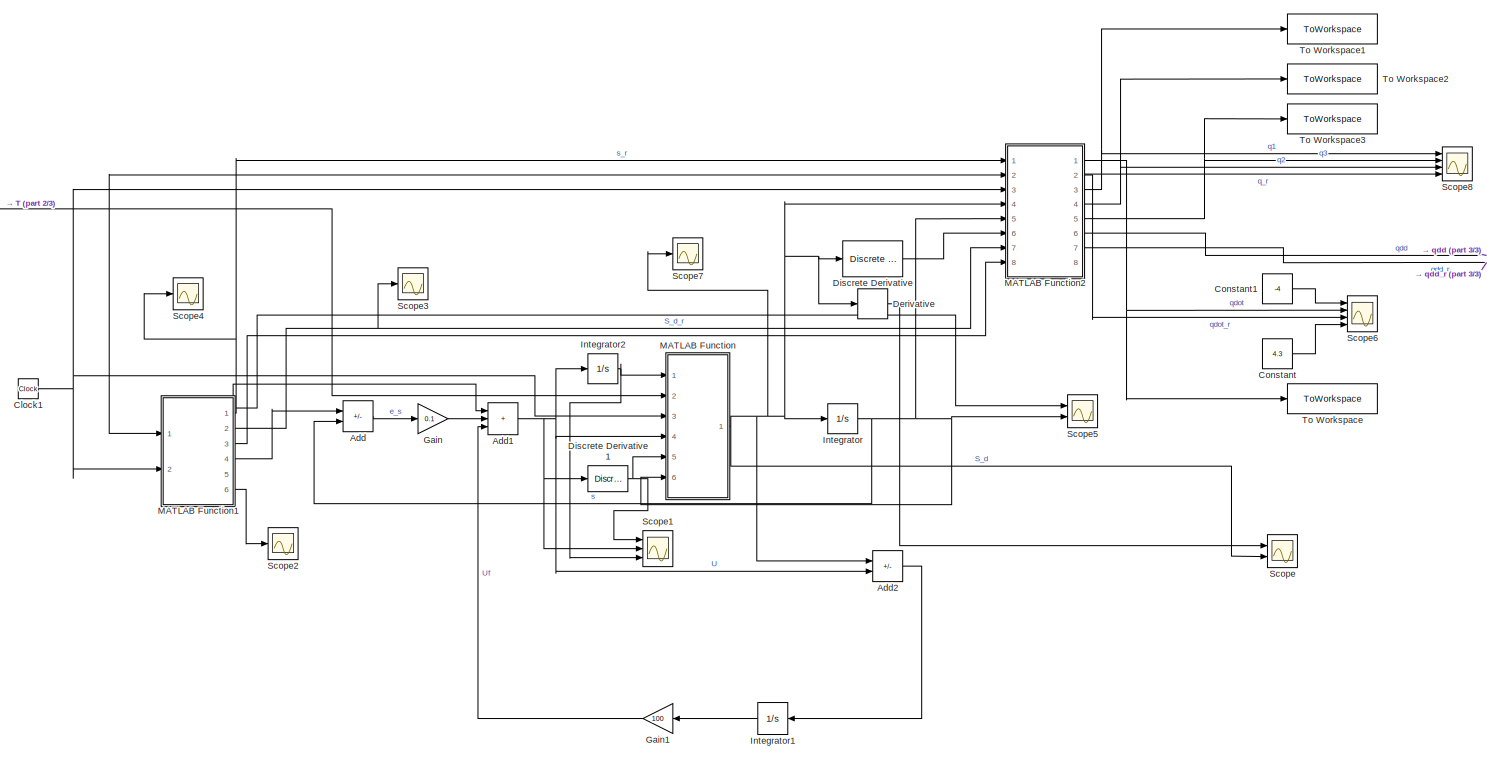
[diagram: root canvas - part 1/3, most of the canvas]
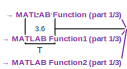
[diagram: root canvas - part 2/3, top left region]
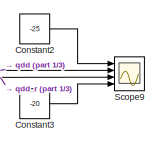
[diagram: root canvas - part 3/3, middle right region]
MODEL slx_b0e207324e34
KIND model
CONFIG AbsTol = auto
CONFIG EnableMultiTasking = off
CONFIG FixedStep = 0.01
CONFIG MaxStep = auto
CONFIG MinStep = auto
CONFIG RelTol = 1e-3
CONFIG SampleTimeConstraint = Unconstrained
CONFIG SolverName = VariableStepAuto
CONFIG StartTime = 0.0
CONFIG StopTime = 3.6
BLOCK [Sum] Add
  IconShape = rectangular
  Inputs = +-
  Ports = [2, 1]
BLOCK [Sum] Add1
  IconShape = rectangular
  Inputs = +++
  Ports = [3, 1]
BLOCK [Sum] Add2
  IconShape = rectangular
  Inputs = +-
  Ports = [2, 1]
BLOCK [Clock] Clock1
BLOCK [Constant] Constant
  Value = 4.3
BLOCK [Constant] Constant1
  Value = -4
BLOCK [Constant] Constant2
  Value = -25
BLOCK [Constant] Constant3
  Value = -20
BLOCK [Derivative] Derivative
BLOCK [Reference] Discrete Derivative  REF=simulink/Discrete/Discrete Derivative
  Ports = [1, 1]
  SourceBlock = simulink/Discrete/Discrete Derivative
  SourceProductBaseCode = SL
  SourceType = Discrete Derivative
BLOCK [Reference] Discrete Derivative1  REF=simulink/Discrete/Discrete Derivative
  Ports = [1, 1]
  SourceBlock = simulink/Discrete/Discrete Derivative
  SourceProductBaseCode = SL
  SourceType = Discrete Derivative
BLOCK [Gain] Gain
  Gain = 0.1
BLOCK [Gain] Gain1
  Gain = 100
BLOCK [Integrator] Integrator
  Ports = [1, 1]
BLOCK [Integrator] Integrator1
  Ports = [1, 1]
BLOCK [Integrator] Integrator2
  Ports = [1, 1]
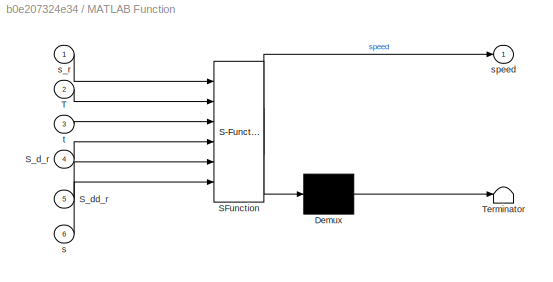
BLOCK [SubSystem] MATLAB Function
  ErrorFcn = Stateflow.Translate.translate
  PermitHierarchicalResolution = ExplicitOnly
  Ports = [6, 1]
  RequestExecContextInheritance = off
  SFBlockType = MATLAB Function
  TreatAsAtomicUnit = on
BLOCK [Demux] MATLAB Function/ Demux 
  Outputs = 1
  Ports = [1, 1]
BLOCK [S-Function] MATLAB Function/ SFunction 
  EnableBusSupport = on
  FunctionName = sf_sfun
  PortCounts = [6 2]
  Ports = [6, 2]
  SFcnIsStateOwnerBlock = off
  SFunctionDeploymentMode = off
  Tag = Stateflow S-Function 2
BLOCK [Terminator] MATLAB Function/ Terminator 
BLOCK [Inport] MATLAB Function/S_d_r
  Port = 4
BLOCK [Inport] MATLAB Function/S_dd_r
  Port = 5
BLOCK [Inport] MATLAB Function/T
  Port = 2
BLOCK [Inport] MATLAB Function/s
  Port = 6
BLOCK [Inport] MATLAB Function/s_r
BLOCK [Outport] MATLAB Function/speed
BLOCK [Inport] MATLAB Function/t
  Port = 3
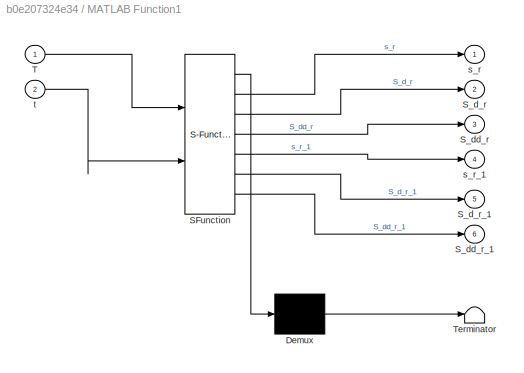
BLOCK [SubSystem] MATLAB Function1
  ErrorFcn = Stateflow.Translate.translate
  PermitHierarchicalResolution = ExplicitOnly
  Ports = [2, 6]
  RequestExecContextInheritance = off
  SFBlockType = MATLAB Function
  TreatAsAtomicUnit = on
BLOCK [Demux] MATLAB Function1/ Demux 
  Outputs = 1
  Ports = [1, 1]
BLOCK [S-Function] MATLAB Function1/ SFunction 
  EnableBusSupport = on
  FunctionName = sf_sfun
  PortCounts = [2 7]
  Ports = [2, 7]
  SFcnIsStateOwnerBlock = off
  SFunctionDeploymentMode = off
  Tag = Stateflow S-Function 3
BLOCK [Terminator] MATLAB Function1/ Terminator 
BLOCK [Outport] MATLAB Function1/S_d_r
  Port = 2
BLOCK [Outport] MATLAB Function1/S_d_r_1
  Port = 5
BLOCK [Outport] MATLAB Function1/S_dd_r
  Port = 3
BLOCK [Outport] MATLAB Function1/S_dd_r_1
  Port = 6
BLOCK [Inport] MATLAB Function1/T
BLOCK [Outport] MATLAB Function1/s_r
BLOCK [Outport] MATLAB Function1/s_r_1
  Port = 4
BLOCK [Inport] MATLAB Function1/t
  Port = 2
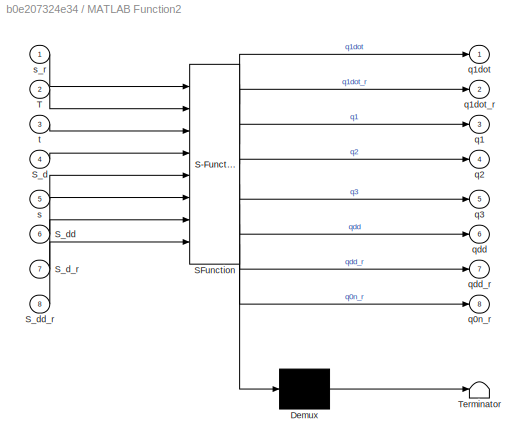
BLOCK [SubSystem] MATLAB Function2
  ErrorFcn = Stateflow.Translate.translate
  PermitHierarchicalResolution = ExplicitOnly
  Ports = [8, 8]
  RequestExecContextInheritance = off
  SFBlockType = MATLAB Function
  TreatAsAtomicUnit = on
BLOCK [Demux] MATLAB Function2/ Demux 
  Outputs = 1
  Ports = [1, 1]
BLOCK [S-Function] MATLAB Function2/ SFunction 
  EnableBusSupport = on
  FunctionName = sf_sfun
  PortCounts = [8 9]
  Ports = [8, 9]
  SFcnIsStateOwnerBlock = off
  SFunctionDeploymentMode = off
  Tag = Stateflow S-Function 4
BLOCK [Terminator] MATLAB Function2/ Terminator 
BLOCK [Inport] MATLAB Function2/S_d
  Port = 4
BLOCK [Inport] MATLAB Function2/S_d_r
  Port = 7
BLOCK [Inport] MATLAB Function2/S_dd
  Port = 6
BLOCK [Inport] MATLAB Function2/S_dd_r
  Port = 8
BLOCK [Inport] MATLAB Function2/T
  Port = 2
BLOCK [Outport] MATLAB Function2/q0n_r
  Port = 8
BLOCK [Outport] MATLAB Function2/q1
  Port = 3
BLOCK [Outport] MATLAB Function2/q1dot
BLOCK [Outport] MATLAB Function2/q1dot_r
  Port = 2
BLOCK [Outport] MATLAB Function2/q2
  Port = 4
BLOCK [Outport] MATLAB Function2/q3
  Port = 5
BLOCK [Outport] MATLAB Function2/qdd
  Port = 6
BLOCK [Outport] MATLAB Function2/qdd_r
  Port = 7
BLOCK [Inport] MATLAB Function2/s
  Port = 5
BLOCK [Inport] MATLAB Function2/s_r
BLOCK [Inport] MATLAB Function2/t
  Port = 3
BLOCK [Scope] Scope
  Floating = off
  NumInputPorts = 2
  Ports = [2]
  ScopeSpecificationString = Simulink.scopes.TimeScopeBlockCfg('CurrentConfiguration', extmgr.ConfigurationSet(extmgr.Configuration('Core','General UI',true),extmgr.Configuration('Core','Source UI',true),extmgr.Configuration('Sources','WiredSimulink',true,'DataLoggingVariableName','ScopeData5'),extmgr.Configuration('Visuals','Time Domain',true,'SerializedDisplays',{struct('MinYLimReal','-10.18085','MaxYLimReal','1.9193','YLab...<+1450ch>
BLOCK [Scope] Scope1
  Floating = off
  NumInputPorts = 3
  Ports = [3]
  ScopeSpecificationString = Simulink.scopes.TimeScopeBlockCfg('CurrentConfiguration', extmgr.ConfigurationSet(extmgr.Configuration('Core','General UI',true),extmgr.Configuration('Core','Source UI',true),extmgr.Configuration('Sources','WiredSimulink',true,'DataLoggingVariableName','ScopeData7'),extmgr.Configuration('Visuals','Time Domain',true,'SerializedDisplays',{struct('MinYLimReal','-0.72352','MaxYLimReal','1.10704','YLab...<+1492ch>
BLOCK [Scope] Scope2
  Floating = off
  NumInputPorts = 1
  Ports = [1]
  ScopeSpecificationString = Simulink.scopes.TimeScopeBlockCfg('CurrentConfiguration', extmgr.ConfigurationSet(extmgr.Configuration('Core','General UI',true),extmgr.Configuration('Core','Source UI',true),extmgr.Configuration('Sources','WiredSimulink',true,'DataLoggingVariableName','ScopeData8'),extmgr.Configuration('Visuals','Time Domain',true,'SerializedDisplays',{struct('MinYLimReal','-0.58775','MaxYLimReal','0.58776','YLab...<+1384ch>
BLOCK [Scope] Scope3
  Floating = off
  NumInputPorts = 1
  Ports = [1]
  ScopeSpecificationString = Simulink.scopes.TimeScopeBlockCfg('CurrentConfiguration', extmgr.ConfigurationSet(extmgr.Configuration('Core','General UI',true),extmgr.Configuration('Core','Source UI',true),extmgr.Configuration('Sources','WiredSimulink',true,'DataLoggingVariableName','ScopeData1'),extmgr.Configuration('Visuals','Time Domain',true,'SerializedDisplays',{struct('MinYLimReal','-0.06686','MaxYLimReal','0.6017','YLabe...<+1428ch>
BLOCK [Scope] Scope4
  Floating = off
  NumInputPorts = 1
  Ports = [1]
  ScopeSpecificationString = Simulink.scopes.TimeScopeBlockCfg('CurrentConfiguration', extmgr.ConfigurationSet(extmgr.Configuration('Core','General UI',true),extmgr.Configuration('Core','Source UI',true),extmgr.Configuration('Sources','WiredSimulink',true,'DataLoggingVariableName','ScopeData2'),extmgr.Configuration('Visuals','Time Domain',true,'SerializedDisplays',{struct('MinYLimReal','-0.125','MaxYLimReal','1.125','YLabelRe...<+1383ch>
BLOCK [Scope] Scope5
  Floating = off
  NumInputPorts = 2
  Ports = [2]
  ScopeSpecificationString = Simulink.scopes.TimeScopeBlockCfg('CurrentConfiguration', extmgr.ConfigurationSet(extmgr.Configuration('Core','General UI',true),extmgr.Configuration('Core','Source UI',true),extmgr.Configuration('Sources','WiredSimulink',true,'DataLoggingVariableName','ScopeData3'),extmgr.Configuration('Visuals','Time Domain',true,'SerializedDisplays',{struct('MinYLimReal','-0.125','MaxYLimReal','1.125','YLabelRe...<+1430ch>
BLOCK [Scope] Scope6
  Floating = off
  NumInputPorts = 4
  Ports = [4]
  ScopeSpecificationString = Simulink.scopes.TimeScopeBlockCfg('CurrentConfiguration', extmgr.ConfigurationSet(extmgr.Configuration('Core','General UI',true,'FigureColor',[1 1 1]),extmgr.Configuration('Core','Source UI',true),extmgr.Configuration('Sources','WiredSimulink',true,'DataLoggingVariableName','ScopeData4'),extmgr.Configuration('Visuals','Time Domain',true,'SerializedDisplays',{struct('MinYLimReal','-6.39782','MaxYLi...<+2549ch>
BLOCK [Scope] Scope7
  Floating = off
  NumInputPorts = 1
  Ports = [1]
  ScopeSpecificationString = Simulink.scopes.TimeScopeBlockCfg('CurrentConfiguration', extmgr.ConfigurationSet(extmgr.Configuration('Core','General UI',true),extmgr.Configuration('Core','Source UI',true),extmgr.Configuration('Sources','WiredSimulink',true,'DataLoggingVariableName','ScopeData1'),extmgr.Configuration('Visuals','Time Domain',true,'SerializedDisplays',{struct('MinYLimReal','-0.06686','MaxYLimReal','0.6017','YLabe...<+1358ch>
BLOCK [Scope] Scope8
  Floating = off
  NumInputPorts = 4
  Ports = [4]
  ScopeSpecificationString = Simulink.scopes.TimeScopeBlockCfg('CurrentConfiguration', extmgr.ConfigurationSet(extmgr.Configuration('Core','General UI',true,'FigureColor',[1 1 1]),extmgr.Configuration('Core','Source UI',true),extmgr.Configuration('Sources','WiredSimulink',true,'DataLoggingVariableName','ScopeData6'),extmgr.Configuration('Visuals','Time Domain',true,'SerializedDisplays',{struct('MinYLimReal','-3.53235','MaxYLi...<+2180ch>
BLOCK [Scope] Scope9
  Floating = off
  NumInputPorts = 4
  Ports = [4]
  ScopeSpecificationString = Simulink.scopes.TimeScopeBlockCfg('CurrentConfiguration', extmgr.ConfigurationSet(extmgr.Configuration('Core','General UI',true,'FigureColor',[1 1 1]),extmgr.Configuration('Core','Source UI',true),extmgr.Configuration('Sources','WiredSimulink',true),extmgr.Configuration('Visuals','Time Domain',true,'SerializedDisplays',{struct('MinYLimReal','-31.25','MaxYLimReal','27.49848','YLabelReal','','MinYLi...<+2191ch>
BLOCK [Constant] T
  Value = 3.6
BLOCK [ToWorkspace] To Workspace
  FixptAsFi = on
  MaxDataPoints = inf
  Ports = [1]
  SampleTime = -1
  VariableName = simout
BLOCK [ToWorkspace] To Workspace1
  FixptAsFi = on
  MaxDataPoints = inf
  Ports = [1]
  SampleTime = -1
  VariableName = q1
BLOCK [ToWorkspace] To Workspace2
  FixptAsFi = on
  MaxDataPoints = inf
  Ports = [1]
  SampleTime = -1
  VariableName = q2
BLOCK [ToWorkspace] To Workspace3
  FixptAsFi = on
  MaxDataPoints = inf
  Ports = [1]
  SampleTime = -1
  VariableName = q3
NET Add1:1 -> Add2:2, Discrete Derivative1:1, Integrator2:1, MATLAB Function:4, Scope1:2
LINE Add2:1 -> Integrator1:1
LINE Add:1 -> Gain:1
NET Clock1:1 -> MATLAB Function1:2, MATLAB Function2:3, MATLAB Function:3
LINE Constant1:1 -> Scope6:1
LINE Constant2:1 -> Scope9:1
LINE Constant3:1 -> Scope9:4
LINE Constant:1 -> Scope6:4
LINE Derivative:1 -> Scope:1
NET Discrete Derivative1:1 -> MATLAB Function:5, Scope1:1
LINE Discrete Derivative:1 -> MATLAB Function2:6
LINE Gain1:1 -> Add1:3
LINE Gain:1 -> Add1:2
LINE Integrator1:1 -> Gain1:1
NET Integrator2:1 -> MATLAB Function:1, Scope1:3
NET Integrator:1 -> Add:2, MATLAB Function2:5, MATLAB Function:6, Scope5:2
NET MATLAB Function1:1 -> MATLAB Function2:1, Scope4:1, Scope5:1
NET MATLAB Function1:2 -> MATLAB Function2:7, Scope3:1
LINE MATLAB Function1:3 -> MATLAB Function2:8
LINE MATLAB Function1:4 -> Add:1
LINE MATLAB Function1:5 -> Add1:1
LINE MATLAB Function1:6 -> Scope2:1
NET MATLAB Function2:1 -> Scope6:2, To Workspace:1
LINE MATLAB Function2:2 -> Scope6:3
NET MATLAB Function2:3 -> Scope8:1, To Workspace1:1
NET MATLAB Function2:4 -> Scope8:3, To Workspace2:1
NET MATLAB Function2:5 -> Scope8:2, To Workspace3:1
LINE MATLAB Function2:6 -> Scope9:2
LINE MATLAB Function2:7 -> Scope9:3
LINE MATLAB Function2:8 -> Scope8:4
NET MATLAB Function:1 -> Add2:1, Derivative:1, Discrete Derivative:1, Integrator:1, MATLAB Function2:4, Scope7:1, Scope:2
NET T:1 -> MATLAB Function1:1, MATLAB Function2:2, MATLAB Function:2
note: NET lines group one-source signal fan-out (src -> all destinations, sorted); 1:1 wires keep LINE
CHART MATLAB Function states=1 transitions=1
  STATE_LABEL 'eML_blk_kernel()'
  STATE_LABEL "SCRIPT:\nfunction speed = saturation(s_r, T, t, S_d_r,S_dd_r, s)\nif t <T \n%Links length\nl1 = 1; l2 =1; l3 = 1;\n\n%Trajectory\nR = 0.5; x0 = 1; y0 = 1.5;\n\n%%% REFERENCE\np_s_r = [x0 + R*cos(2*pi*s_r);\n         y0 + R*sin(2*pi*s_r);\n         pi/4];\n\n\n%Velocity of the trajectory\n\n\n%%pdot = R'*s'(t)\n\nR1_s_r=[-2*pi*R*(sin(2*pi*s_r));\n        2*pi*R*(cos(2*pi*s_r));\n       0];\n\n\n\n%%% REFERENCE\n\n%%%POLYNOMIA...<+3608ch>"
CHART MATLAB Function1 states=1 transitions=1
  STATE_LABEL 'eML_blk_kernel()'
  STATE_LABEL 'SCRIPT:\nfunction [s_r, S_d_r,S_dd_r, s_r_1,S_d_r_1,S_dd_r_1] = timing_law(T, t)\n\ntau_t=t/T;\n%s_r = -2*tau_t^3 + 3*tau_t^2;\ns_r = 10*tau_t^3 - 15*tau_t^4 + 6*tau_t^5;\nS_d_r = (30*t^2)/T^3 - (60*t^3)/T^4 + (30*t^4)/T^5;\nS_dd_r=(60*t)/T^3 - (180*t^2)/T^4 + (120*t^3)/T^5;\n\nt_1 = t +0.0001;\ntau_t_1 = t_1/T;\ns_r_1 = 10*tau_t_1^3 - 15*tau_t_1^4 + 6*tau_t_1^5;\nS_d_r_1 = (30*t_1^2)/T^3 - (60*t_1^3)/T^4 + (...<+175ch>'
CHART MATLAB Function2 states=1 transitions=1
  STATE_LABEL 'eML_blk_kernel()'
  STATE_LABEL "SCRIPT:\nfunction [q1dot,q1dot_r,q1,q2,q3,qdd,qdd_r,q0n_r] = trajectory(s_r, T, t, S_d, s,S_dd,S_d_r,S_dd_r)\n\n%Links length\nl1 = 1; l2 =1; l3 = 1;\n\n%Trajectory\nR = 0.5; x0 = 1; y0 = 1.5;\n\np_s = [x0 + R*cos(2*pi*s);\n       y0 + R*sin(2*pi*s);\n       pi/4];\n\n\n%%% REFERENCE\np_s_r = [x0 + R*cos(2*pi*s_r);\n         y0 + R*sin(2*pi*s_r);\n         pi/4];\n\n\n%Velocity of the trajectory\n\n\n%%pdot = R'*s'(t)\nR...<+3608ch>"
CHART  states=0 transitions=0
CHART  states=0 transitions=0
CHART  states=0 transitions=0
